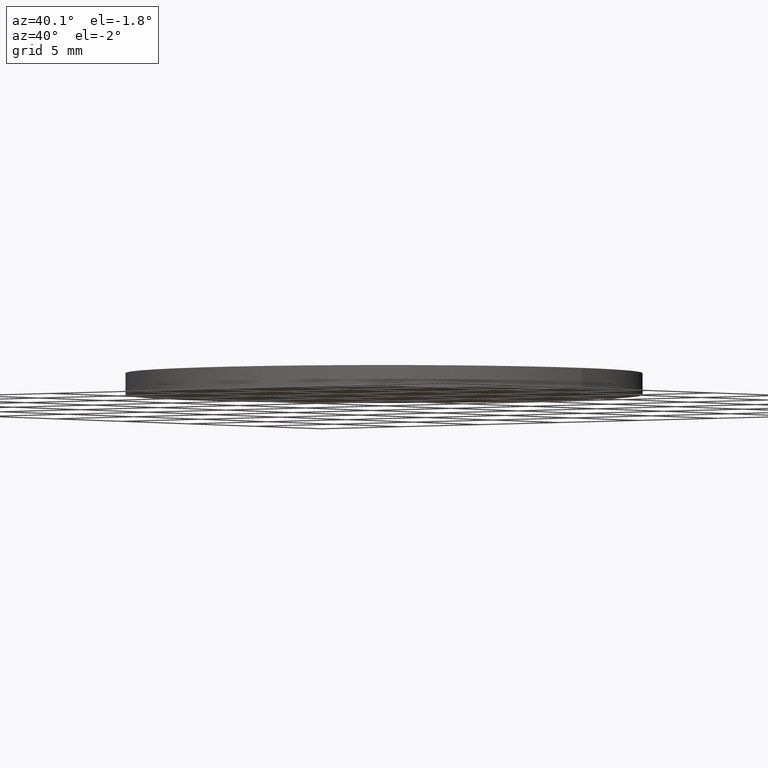
[diagram: clean part render]
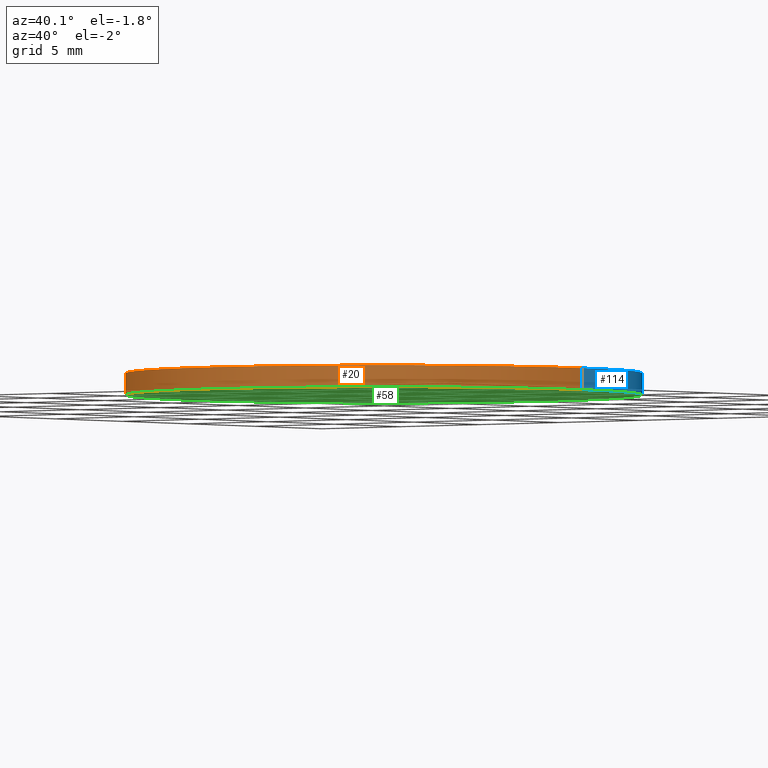
[diagram: same view with three faces highlighted in distinct colors, each labeled with its STEP entity id]
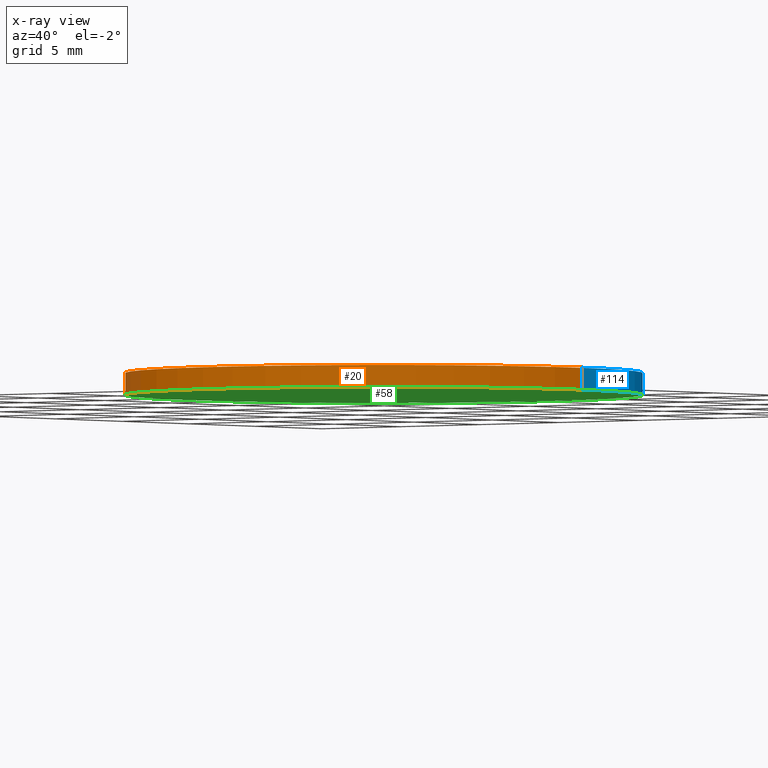
[diagram: x-ray of the same camera — body ghosted, the three highlighted faces saturated]
A machine part, auxiliary view with three faces highlighted in distinct colors.
The next image is the same camera in x-ray (body ghosted, the three faces saturated) — at least one of them is partly hidden behind the body in this view.
Their STEP definitions:

[orange] entity #20 — the highlighted cylindrical surface (partial cylindrical patch) has radius 12.5 mm, axis along (-0, -0, -1).
#1 = DIRECTION ( 'NONE',  ( 0.0000000000000000000, 0.0000000000000000000, 1.000000000000000000 ) ) ;
#2 = EDGE_LOOP ( 'NONE', ( #43, #60, #136, #67 ) ) ;
#4 = CARTESIAN_POINT ( 'NONE',  ( -12.50000000000000000, 0.0000000000000000000, 1.050000000000000000 ) ) ;
#8 = EDGE_CURVE ( 'NONE', #93, #102, #105, .T. ) ;
#13 = AXIS2_PLACEMENT_3D ( 'NONE', #108, #48, #127 ) ;
#16 = DIRECTION ( 'NONE',  ( -0.0000000000000000000, -0.0000000000000000000, -1.000000000000000000 ) ) ;
#20 = ADVANCED_FACE ( 'NONE', ( #27 ), #117, .T. ) ;
#23 = LINE ( 'NONE', #76, #56 ) ;
#27 = FACE_OUTER_BOUND ( 'NONE', #2, .T. ) ;
#30 = CARTESIAN_POINT ( 'NONE',  ( 12.50000000000000000, 1.530808498934191500E-015, 0.0000000000000000000 ) ) ;
#31 = DIRECTION ( 'NONE',  ( 0.0000000000000000000, 0.0000000000000000000, 1.000000000000000000 ) ) ;
#43 = ORIENTED_EDGE ( 'NONE', *, *, #71, .F. ) ;
#47 = AXIS2_PLACEMENT_3D ( 'NONE', #73, #31, #88 ) ;
#48 = DIRECTION ( 'NONE',  ( -0.0000000000000000000, -0.0000000000000000000, -1.000000000000000000 ) ) ;
#49 = CARTESIAN_POINT ( 'NONE',  ( 0.0000000000000000000, 0.0000000000000000000, 1.050000000000000000 ) ) ;
#50 = DIRECTION ( 'NONE',  ( -0.0000000000000000000, -0.0000000000000000000, -1.000000000000000000 ) ) ;
#53 = CARTESIAN_POINT ( 'NONE',  ( -12.50000000000000000, 0.0000000000000000000, 1.050000000000000000 ) ) ;
#56 = VECTOR ( 'NONE', #50, 1000.000000000000000 ) ;
#60 = ORIENTED_EDGE ( 'NONE', *, *, #8, .F. ) ;
#63 = EDGE_CURVE ( 'NONE', #138, #125, #84, .T. ) ;
#67 = ORIENTED_EDGE ( 'NONE', *, *, #63, .T. ) ;
#70 = VECTOR ( 'NONE', #16, 1000.000000000000000 ) ;
#71 = EDGE_CURVE ( 'NONE', #102, #125, #23, .T. ) ;
#73 = CARTESIAN_POINT ( 'NONE',  ( 0.0000000000000000000, 0.0000000000000000000, 0.0000000000000000000 ) ) ;
#76 = CARTESIAN_POINT ( 'NONE',  ( 12.50000000000000000, 1.530808498934191500E-015, 1.050000000000000000 ) ) ;
#79 = CARTESIAN_POINT ( 'NONE',  ( -12.50000000000000000, 0.0000000000000000000, 0.0000000000000000000 ) ) ;
#84 = CIRCLE ( 'NONE', #47, 12.50000000000000000 ) ;
#85 = AXIS2_PLACEMENT_3D ( 'NONE', #49, #1, #86 ) ;
#86 = DIRECTION ( 'NONE',  ( 1.000000000000000000, 0.0000000000000000000, 0.0000000000000000000 ) ) ;
#88 = DIRECTION ( 'NONE',  ( 1.000000000000000000, 0.0000000000000000000, 0.0000000000000000000 ) ) ;
#89 = LINE ( 'NONE', #53, #70 ) ;
#93 = VERTEX_POINT ( 'NONE', #4 ) ;
#102 = VERTEX_POINT ( 'NONE', #130 ) ;
#105 = CIRCLE ( 'NONE', #85, 12.50000000000000000 ) ;
#108 = CARTESIAN_POINT ( 'NONE',  ( 0.0000000000000000000, 0.0000000000000000000, 1.050000000000000000 ) ) ;
#117 = CYLINDRICAL_SURFACE ( 'NONE', #13, 12.50000000000000000 ) ;
#120 = EDGE_CURVE ( 'NONE', #93, #138, #89, .T. ) ;
#125 = VERTEX_POINT ( 'NONE', #30 ) ;
#127 = DIRECTION ( 'NONE',  ( -1.000000000000000000, 0.0000000000000000000, 0.0000000000000000000 ) ) ;
#130 = CARTESIAN_POINT ( 'NONE',  ( 12.50000000000000000, 1.530808498934191500E-015, 1.050000000000000000 ) ) ;
#136 = ORIENTED_EDGE ( 'NONE', *, *, #120, .T. ) ;
#138 = VERTEX_POINT ( 'NONE', #79 ) ;

[blue] entity #114 — the highlighted cylindrical surface (partial cylindrical patch) has radius 12.5 mm, axis along (-0, -0, -1).
#4 = CARTESIAN_POINT ( 'NONE',  ( -12.50000000000000000, 0.0000000000000000000, 1.050000000000000000 ) ) ;
#6 = DIRECTION ( 'NONE',  ( 1.000000000000000000, 0.0000000000000000000, 0.0000000000000000000 ) ) ;
#11 = ORIENTED_EDGE ( 'NONE', *, *, #68, .F. ) ;
#16 = DIRECTION ( 'NONE',  ( -0.0000000000000000000, -0.0000000000000000000, -1.000000000000000000 ) ) ;
#17 = CARTESIAN_POINT ( 'NONE',  ( 0.0000000000000000000, 0.0000000000000000000, 0.0000000000000000000 ) ) ;
#18 = DIRECTION ( 'NONE',  ( 0.0000000000000000000, 0.0000000000000000000, 1.000000000000000000 ) ) ;
#19 = AXIS2_PLACEMENT_3D ( 'NONE', #17, #18, #6 ) ;
#23 = LINE ( 'NONE', #76, #56 ) ;
#24 = AXIS2_PLACEMENT_3D ( 'NONE', #61, #78, #101 ) ;
#28 = EDGE_LOOP ( 'NONE', ( #11, #106, #116, #36 ) ) ;
#30 = CARTESIAN_POINT ( 'NONE',  ( 12.50000000000000000, 1.530808498934191500E-015, 0.0000000000000000000 ) ) ;
#32 = AXIS2_PLACEMENT_3D ( 'NONE', #122, #64, #52 ) ;
#36 = ORIENTED_EDGE ( 'NONE', *, *, #120, .F. ) ;
#50 = DIRECTION ( 'NONE',  ( -0.0000000000000000000, -0.0000000000000000000, -1.000000000000000000 ) ) ;
#52 = DIRECTION ( 'NONE',  ( -1.000000000000000000, 0.0000000000000000000, 0.0000000000000000000 ) ) ;
#53 = CARTESIAN_POINT ( 'NONE',  ( -12.50000000000000000, 0.0000000000000000000, 1.050000000000000000 ) ) ;
#56 = VECTOR ( 'NONE', #50, 1000.000000000000000 ) ;
#59 = FACE_OUTER_BOUND ( 'NONE', #28, .T. ) ;
#61 = CARTESIAN_POINT ( 'NONE',  ( 0.0000000000000000000, 0.0000000000000000000, 1.050000000000000000 ) ) ;
#64 = DIRECTION ( 'NONE',  ( -0.0000000000000000000, -0.0000000000000000000, -1.000000000000000000 ) ) ;
#68 = EDGE_CURVE ( 'NONE', #102, #93, #98, .T. ) ;
#70 = VECTOR ( 'NONE', #16, 1000.000000000000000 ) ;
#71 = EDGE_CURVE ( 'NONE', #102, #125, #23, .T. ) ;
#76 = CARTESIAN_POINT ( 'NONE',  ( 12.50000000000000000, 1.530808498934191500E-015, 1.050000000000000000 ) ) ;
#78 = DIRECTION ( 'NONE',  ( 0.0000000000000000000, 0.0000000000000000000, 1.000000000000000000 ) ) ;
#79 = CARTESIAN_POINT ( 'NONE',  ( -12.50000000000000000, 0.0000000000000000000, 0.0000000000000000000 ) ) ;
#82 = CYLINDRICAL_SURFACE ( 'NONE', #32, 12.50000000000000000 ) ;
#89 = LINE ( 'NONE', #53, #70 ) ;
#92 = EDGE_CURVE ( 'NONE', #125, #138, #124, .T. ) ;
#93 = VERTEX_POINT ( 'NONE', #4 ) ;
#98 = CIRCLE ( 'NONE', #24, 12.50000000000000000 ) ;
#101 = DIRECTION ( 'NONE',  ( 1.000000000000000000, 0.0000000000000000000, 0.0000000000000000000 ) ) ;
#102 = VERTEX_POINT ( 'NONE', #130 ) ;
#106 = ORIENTED_EDGE ( 'NONE', *, *, #71, .T. ) ;
#114 = ADVANCED_FACE ( 'NONE', ( #59 ), #82, .T. ) ;
#116 = ORIENTED_EDGE ( 'NONE', *, *, #92, .T. ) ;
#120 = EDGE_CURVE ( 'NONE', #93, #138, #89, .T. ) ;
#122 = CARTESIAN_POINT ( 'NONE',  ( 0.0000000000000000000, 0.0000000000000000000, 1.050000000000000000 ) ) ;
#124 = CIRCLE ( 'NONE', #19, 12.50000000000000000 ) ;
#125 = VERTEX_POINT ( 'NONE', #30 ) ;
#130 = CARTESIAN_POINT ( 'NONE',  ( 12.50000000000000000, 1.530808498934191500E-015, 1.050000000000000000 ) ) ;
#138 = VERTEX_POINT ( 'NONE', #79 ) ;

[green] entity #58 — the highlighted planar face has unit normal (0, 0, 1).
#3 = PLANE ( 'NONE',  #140 ) ;
#6 = DIRECTION ( 'NONE',  ( 1.000000000000000000, 0.0000000000000000000, 0.0000000000000000000 ) ) ;
#15 = CARTESIAN_POINT ( 'NONE',  ( 0.0000000000000000000, 0.0000000000000000000, 0.0000000000000000000 ) ) ;
#17 = CARTESIAN_POINT ( 'NONE',  ( 0.0000000000000000000, 0.0000000000000000000, 0.0000000000000000000 ) ) ;
#18 = DIRECTION ( 'NONE',  ( 0.0000000000000000000, 0.0000000000000000000, 1.000000000000000000 ) ) ;
#19 = AXIS2_PLACEMENT_3D ( 'NONE', #17, #18, #6 ) ;
#21 = EDGE_LOOP ( 'NONE', ( #109, #81 ) ) ;
#30 = CARTESIAN_POINT ( 'NONE',  ( 12.50000000000000000, 1.530808498934191500E-015, 0.0000000000000000000 ) ) ;
#31 = DIRECTION ( 'NONE',  ( 0.0000000000000000000, 0.0000000000000000000, 1.000000000000000000 ) ) ;
#37 = DIRECTION ( 'NONE',  ( 1.000000000000000000, 0.0000000000000000000, -0.0000000000000000000 ) ) ;
#47 = AXIS2_PLACEMENT_3D ( 'NONE', #73, #31, #88 ) ;
#58 = ADVANCED_FACE ( 'NONE', ( #115 ), #3, .F. ) ;
#63 = EDGE_CURVE ( 'NONE', #138, #125, #84, .T. ) ;
#73 = CARTESIAN_POINT ( 'NONE',  ( 0.0000000000000000000, 0.0000000000000000000, 0.0000000000000000000 ) ) ;
#79 = CARTESIAN_POINT ( 'NONE',  ( -12.50000000000000000, 0.0000000000000000000, 0.0000000000000000000 ) ) ;
#81 = ORIENTED_EDGE ( 'NONE', *, *, #92, .F. ) ;
#84 = CIRCLE ( 'NONE', #47, 12.50000000000000000 ) ;
#88 = DIRECTION ( 'NONE',  ( 1.000000000000000000, 0.0000000000000000000, 0.0000000000000000000 ) ) ;
#92 = EDGE_CURVE ( 'NONE', #125, #138, #124, .T. ) ;
#97 = DIRECTION ( 'NONE',  ( 0.0000000000000000000, 0.0000000000000000000, 1.000000000000000000 ) ) ;
#109 = ORIENTED_EDGE ( 'NONE', *, *, #63, .F. ) ;
#115 = FACE_OUTER_BOUND ( 'NONE', #21, .T. ) ;
#124 = CIRCLE ( 'NONE', #19, 12.50000000000000000 ) ;
#125 = VERTEX_POINT ( 'NONE', #30 ) ;
#138 = VERTEX_POINT ( 'NONE', #79 ) ;
#140 = AXIS2_PLACEMENT_3D ( 'NONE', #15, #97, #37 ) ;